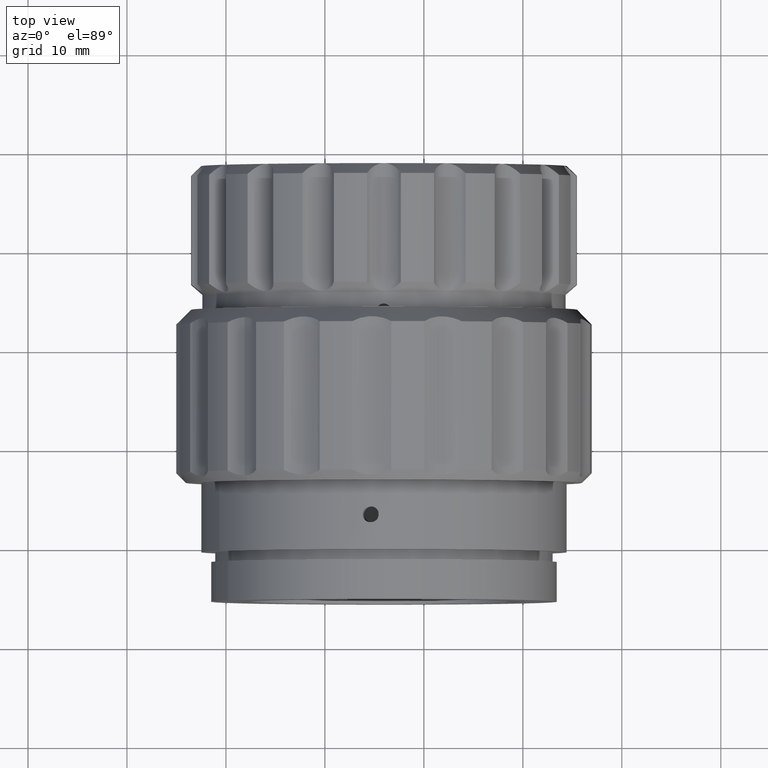
[diagram: clean part render]
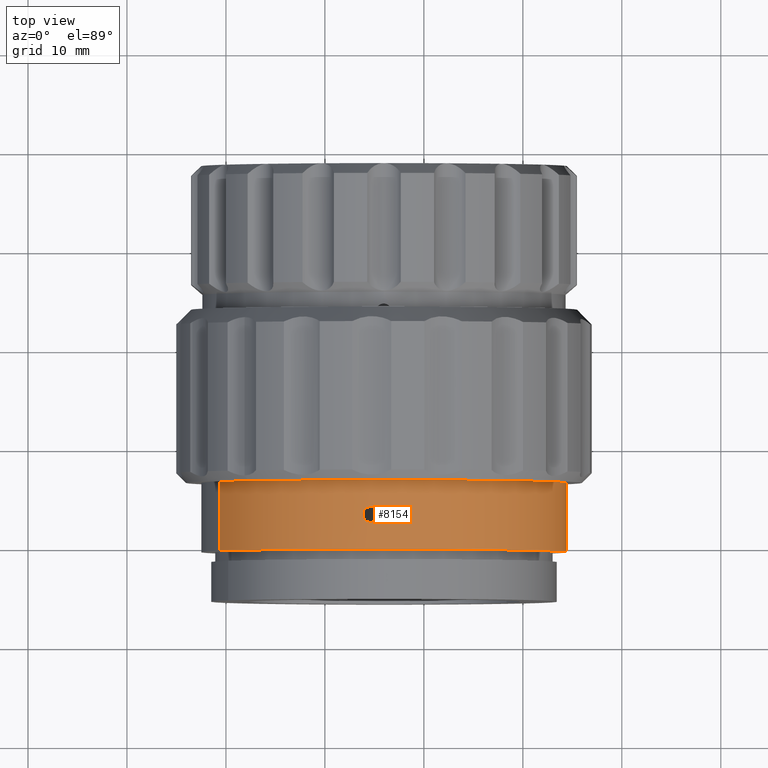
[diagram: same view with one face highlighted and labeled with its STEP entity id]
A machine part, top view. The second image highlights one B-rep face of the part: STEP entity #8154.
In plain terms, the highlighted cylindrical surface (partial cylindrical patch) has radius 18.5 mm, axis along (0, -1, 0).
Its self-contained STEP definition (entity closure, byte-faithful):
#84 = CIRCLE ( 'NONE', #6730, 18.50000000000000000 ) ;
#445 = CARTESIAN_POINT ( 'NONE',  ( 22.95421485139729967, -27.04875568700542132, 37.56544410175752802 ) ) ;
#561 = VECTOR ( 'NONE', #3370, 1000.000000000000000 ) ;
#594 = CARTESIAN_POINT ( 'NONE',  ( 4.215314846893464917, -26.33538536075428738, 63.32033455529960264 ) ) ;
#636 = CARTESIAN_POINT ( 'NONE',  ( 22.66700467115322226, -27.84875568700541848, 36.93286334195106946 ) ) ;
#656 = CARTESIAN_POINT ( 'NONE',  ( 22.62101599078305725, -30.54875568700542132, 36.83792915630831999 ) ) ;
#713 = CARTESIAN_POINT ( 'NONE',  ( 5.971701014312827738, -23.54875568700542132, 44.90330644533106863 ) ) ;
#738 = CARTESIAN_POINT ( 'NONE',  ( 5.271234297513468725, -26.55760953119158074, 63.39019185313431137 ) ) ;
#825 = CARTESIAN_POINT ( 'NONE',  ( 22.95421485139729967, -27.04875568700542132, 37.56544410175752802 ) ) ;
#860 = CARTESIAN_POINT ( 'NONE',  ( 22.95421485139729967, -26.94300266594769866, 37.56544410175752091 ) ) ;
#932 = EDGE_CURVE ( 'NONE', #2867, #2762, #4002, .T. ) ;
#985 = CARTESIAN_POINT ( 'NONE',  ( 4.423760909671483610, -27.82815166489278269, 63.33868808040697473 ) ) ;
#994 = CARTESIAN_POINT ( 'NONE',  ( 22.62101599078306435, -55.81082790531268500, 36.83792915630831288 ) ) ;
#1286 = ORIENTED_EDGE ( 'NONE', *, *, #9397, .F. ) ;
#1349 = CARTESIAN_POINT ( 'NONE',  ( 4.735678254068639959, -26.24871858935710733, 63.36226473401722359 ) ) ;
#1488 = CIRCLE ( 'NONE', #8986, 18.50000000000000000 ) ;
#1752 = CARTESIAN_POINT ( 'NONE',  ( 4.841496471800658341, -27.82774457812802993, 63.36900432168415875 ) ) ;
#1754 = EDGE_CURVE ( 'NONE', #2867, #2402, #1488, .T. ) ;
#1841 = AXIS2_PLACEMENT_3D ( 'NONE', #9544, #5464, #7190 ) ;
#1992 = LINE ( 'NONE', #2753, #561 ) ;
#2038 = VECTOR ( 'NONE', #7093, 1000.000000000000000 ) ;
#2349 = DIRECTION ( 'NONE',  ( 0.000000000000000000, -1.000000000000000000, 0.000000000000000000 ) ) ;
#2402 = VERTEX_POINT ( 'NONE', #9024 ) ;
#2509 = CARTESIAN_POINT ( 'NONE',  ( 5.344429046256649052, -27.46643563968346413, 63.39325715283140994 ) ) ;
#2528 = EDGE_LOOP ( 'NONE', ( #6135, #3940, #4268, #1286, #9700, #4795, #6228 ) ) ;
#2558 = CARTESIAN_POINT ( 'NONE',  ( 3.835219294778413612, -27.26016558468261763, 63.27952602015376726 ) ) ;
#2709 = EDGE_CURVE ( 'NONE', #6787, #4357, #9181, .T. ) ;
#2753 = CARTESIAN_POINT ( 'NONE',  ( 22.62101599078306435, -55.81082790531268500, 36.83792915630831288 ) ) ;
#2762 = VERTEX_POINT ( 'NONE', #8738 ) ;
#2771 = CARTESIAN_POINT ( 'NONE',  ( 22.88993004901827177, -26.55666144112683469, 37.41805529183607604 ) ) ;
#2867 = VERTEX_POINT ( 'NONE', #9623 ) ;
#2959 = CARTESIAN_POINT ( 'NONE',  ( 22.79304017023230955, -27.74768279770128387, 37.20253067308079409 ) ) ;
#3012 = CARTESIAN_POINT ( 'NONE',  ( 3.935805452299495411, -26.64550403280593471, 63.29098561127820233 ) ) ;
#3153 = CARTESIAN_POINT ( 'NONE',  ( 22.95421485139730322, -27.26005484702028525, 37.56544410175752091 ) ) ;
#3327 = CARTESIAN_POINT ( 'NONE',  ( 5.431017640269883984, -27.25756977733642117, 63.39540371657195550 ) ) ;
#3351 = EDGE_CURVE ( 'NONE', #2402, #8681, #7842, .T. ) ;
#3370 = DIRECTION ( 'NONE',  ( 0.000000000000000000, -1.000000000000000000, 0.000000000000000000 ) ) ;
#3399 = EDGE_CURVE ( 'NONE', #9530, #7903, #9125, .T. ) ;
#3555 = EDGE_CURVE ( 'NONE', #7903, #9530, #5982, .T. ) ;
#3687 = CARTESIAN_POINT ( 'NONE',  ( 3.994932987318061013, -26.55675920559166414, 63.29754038862345311 ) ) ;
#3728 = CARTESIAN_POINT ( 'NONE',  ( 5.329942890577187953, -26.64568278814162383, 63.39221559497087810 ) ) ;
#3769 = B_SPLINE_CURVE_WITH_KNOTS ( 'NONE', 3,
 ( #6996, #860, #3956, #7048, #2771, #4359, #7490, #8990 ),
 .UNSPECIFIED., .F., .F.,
 ( 4, 2, 2, 4 ),
 ( 0.000000000000000000, 0.0003127531944308908538, 0.0006255063888617817076, 0.001251012777723576642 ),
 .UNSPECIFIED. ) ;
#3776 = CARTESIAN_POINT ( 'NONE',  ( 22.62101599078306435, -27.84875568700541493, 36.83792915630831288 ) ) ;
#3779 = CARTESIAN_POINT ( 'NONE',  ( 4.423386964770155139, -26.24883003432093176, 63.33958310503579270 ) ) ;
#3940 = ORIENTED_EDGE ( 'NONE', *, *, #1754, .T. ) ;
#3956 = CARTESIAN_POINT ( 'NONE',  ( 22.94597351628154414, -26.83923063289788047, 37.54629004754619359 ) ) ;
#4002 = LINE ( 'NONE', #994, #2038 ) ;
#4090 = CARTESIAN_POINT ( 'NONE',  ( 4.230471501785567412, -27.74790796666770376, 63.32143703405137813 ) ) ;
#4092 = VECTOR ( 'NONE', #9383, 1000.000000000000000 ) ;
#4268 = ORIENTED_EDGE ( 'NONE', *, *, #3351, .T. ) ;
#4357 = VERTEX_POINT ( 'NONE', #445 ) ;
#4359 = CARTESIAN_POINT ( 'NONE',  ( 22.79944262617036443, -26.33527895129820351, 37.21572254327502094 ) ) ;
#4523 = EDGE_LOOP ( 'NONE', ( #6450, #6429 ) ) ;
#4795 = ORIENTED_EDGE ( 'NONE', *, *, #2709, .T. ) ;
#4842 = CARTESIAN_POINT ( 'NONE',  ( 4.737777879915533674, -27.84866790845846651, 63.36241178250032391 ) ) ;
#5122 = CARTESIAN_POINT ( 'NONE',  ( 3.835219294778411836, -27.04875568700542132, 63.27952602015373174 ) ) ;
#5353 = CARTESIAN_POINT ( 'NONE',  ( 5.971701014312827738, -30.54875568700542132, 44.90330644533106863 ) ) ;
#5398 = CARTESIAN_POINT ( 'NONE',  ( 5.431017640274178326, -27.04875568700501987, 63.39540371657205498 ) ) ;
#5464 = DIRECTION ( 'NONE',  ( 0.000000000000000000, -1.000000000000000000, 0.000000000000000000 ) ) ;
#5598 = CARTESIAN_POINT ( 'NONE',  ( 22.92008049625769672, -27.46706645424033510, 37.48547332870801085 ) ) ;
#5616 = CARTESIAN_POINT ( 'NONE',  ( 5.123418612057990984, -27.68784741624311607, 63.38399511723802249 ) ) ;
#5982 = B_SPLINE_CURVE_WITH_KNOTS ( 'NONE', 3,
 ( #7683, #8299, #6072, #3012, #3687, #594, #3779, #1349, #9899, #9217, #9119, #738, #3728, #7582, #8349, #5398 ),
 .UNSPECIFIED., .F., .F.,
 ( 4, 2, 2, 2, 2, 2, 2, 4 ),
 ( 0.000000000000000000, 0.0003126821083319190637, 0.0006253642166638374768, 0.001250728433327669750, 0.001563410541659585561, 0.001876092649991501805, 0.002188774758323417616, 0.002501456866655333428 ),
 .UNSPECIFIED. ) ;
#6072 = CARTESIAN_POINT ( 'NONE',  ( 3.855917910484778499, -26.83927926276575704, 63.28196465823626937 ) ) ;
#6135 = ORIENTED_EDGE ( 'NONE', *, *, #932, .F. ) ;
#6139 = DIRECTION ( 'NONE',  ( 0.000000000000000000, -1.000000000000000000, 0.000000000000000000 ) ) ;
#6184 = DIRECTION ( 'NONE',  ( -0.8999629717010938501, 0.000000000000000000, 0.4359663399471755962 ) ) ;
#6228 = ORIENTED_EDGE ( 'NONE', *, *, #9263, .T. ) ;
#6375 = CARTESIAN_POINT ( 'NONE',  ( 5.431017640274178326, -27.04875568700501987, 63.39540371657205498 ) ) ;
#6429 = ORIENTED_EDGE ( 'NONE', *, *, #3399, .T. ) ;
#6450 = ORIENTED_EDGE ( 'NONE', *, *, #3555, .T. ) ;
#6579 = CARTESIAN_POINT ( 'NONE',  ( 3.835219294778411836, -27.04875568700542132, 63.27952602015373174 ) ) ;
#6730 = AXIS2_PLACEMENT_3D ( 'NONE', #5353, #2349, #6936 ) ;
#6787 = VERTEX_POINT ( 'NONE', #6989 ) ;
#6936 = DIRECTION ( 'NONE',  ( -0.8999629717010936281, 0.000000000000000000, 0.4359663399471755962 ) ) ;
#6989 = CARTESIAN_POINT ( 'NONE',  ( 22.62101599078306435, -27.84875568700541493, 36.83792915630831288 ) ) ;
#6996 = CARTESIAN_POINT ( 'NONE',  ( 22.95421485139729967, -27.04875568700542132, 37.56544410175752802 ) ) ;
#7035 = CARTESIAN_POINT ( 'NONE',  ( -10.67761396215740888, -55.81082790531268500, 52.96868373435381727 ) ) ;
#7048 = CARTESIAN_POINT ( 'NONE',  ( 22.91382810262438241, -26.64542050544974217, 37.47256307929649211 ) ) ;
#7091 = FACE_BOUND ( 'NONE', #4523, .T. ) ;
#7093 = DIRECTION ( 'NONE',  ( 0.000000000000000000, -1.000000000000000000, 0.000000000000000000 ) ) ;
#7127 = CARTESIAN_POINT ( 'NONE',  ( 5.431017640274178326, -27.04875568700501987, 63.39540371657205498 ) ) ;
#7184 = CARTESIAN_POINT ( 'NONE',  ( 4.142218999883214181, -27.68862313426357247, 63.31277302785816374 ) ) ;
#7190 = DIRECTION ( 'NONE',  ( -0.8999629717010938501, 0.000000000000000000, 0.4359663399471755962 ) ) ;
#7490 = CARTESIAN_POINT ( 'NONE',  ( 22.71204314692312209, -26.24875568700498008, 37.02583602534599549 ) ) ;
#7582 = CARTESIAN_POINT ( 'NONE',  ( 5.410275329744074213, -26.83959082834165244, 63.39482926617311165 ) ) ;
#7683 = CARTESIAN_POINT ( 'NONE',  ( 3.835219294778411836, -27.04875568700542132, 63.27952602015373174 ) ) ;
#7842 = LINE ( 'NONE', #7035, #4092 ) ;
#7897 = CYLINDRICAL_SURFACE ( 'NONE', #1841, 18.50000000000000000 ) ;
#7903 = VERTEX_POINT ( 'NONE', #5122 ) ;
#7936 = CARTESIAN_POINT ( 'NONE',  ( 4.527275652294603603, -27.84884291549786539, 63.34713390938711797 ) ) ;
#8020 = VERTEX_POINT ( 'NONE', #656 ) ;
#8154 = ADVANCED_FACE ( 'NONE', ( #9592, #7091 ), #7897, .T. ) ;
#8299 = CARTESIAN_POINT ( 'NONE',  ( 3.835219294778413612, -26.94302670269571465, 63.27952602015373884 ) ) ;
#8349 = CARTESIAN_POINT ( 'NONE',  ( 5.431017640269614866, -26.94432490148855663, 63.39540371657192708 ) ) ;
#8616 = EDGE_CURVE ( 'NONE', #6787, #8020, #1992, .T. ) ;
#8681 = VERTEX_POINT ( 'NONE', #8807 ) ;
#8711 = CARTESIAN_POINT ( 'NONE',  ( 5.034692227647141749, -27.74739009990412697, 63.37981517675482479 ) ) ;
#8738 = CARTESIAN_POINT ( 'NONE',  ( 22.62101599078293646, -26.24875568699507866, 36.83792915630702680 ) ) ;
#8807 = CARTESIAN_POINT ( 'NONE',  ( -10.67761396215740533, -30.54875568700542132, 52.96868373435381727 ) ) ;
#8986 = AXIS2_PLACEMENT_3D ( 'NONE', #713, #6139, #6184 ) ;
#8990 = CARTESIAN_POINT ( 'NONE',  ( 22.62101599078293646, -26.24875568699507866, 36.83792915630702680 ) ) ;
#9024 = CARTESIAN_POINT ( 'NONE',  ( -10.67761396215740888, -23.54875568700542132, 52.96868373435381727 ) ) ;
#9119 = CARTESIAN_POINT ( 'NONE',  ( 5.121890445092240896, -26.40827253313681666, 63.38392893752634194 ) ) ;
#9125 = B_SPLINE_CURVE_WITH_KNOTS ( 'NONE', 3,
 ( #6375, #3327, #2509, #5616, #8711, #1752, #4842, #7936, #985, #4090, #7184, #9541, #2558, #6579 ),
 .UNSPECIFIED., .F., .F.,
 ( 4, 2, 2, 2, 2, 2, 4 ),
 ( 0.002501456866655333428, 0.003126678918673719484, 0.003439289944682912947, 0.003751900970692106409, 0.004064511996701300305, 0.004377123022710493333, 0.005002345074728875053 ),
 .UNSPECIFIED. ) ;
#9181 = B_SPLINE_CURVE_WITH_KNOTS ( 'NONE', 3,
 ( #3776, #636, #9937, #2959, #9215, #5598, #3153, #825 ),
 .UNSPECIFIED., .F., .F.,
 ( 4, 2, 2, 4 ),
 ( 0.003752555960162648040, 0.004065003238804197963, 0.004377450517445747452, 0.005002345074728854236 ),
 .UNSPECIFIED. ) ;
#9215 = CARTESIAN_POINT ( 'NONE',  ( 22.82963241151823652, -27.68838080819150704, 37.28322752122299022 ) ) ;
#9217 = CARTESIAN_POINT ( 'NONE',  ( 5.033801498355228610, -26.34959459663452463, 63.37977067349885374 ) ) ;
#9263 = EDGE_CURVE ( 'NONE', #4357, #2762, #3769, .T. ) ;
#9383 = DIRECTION ( 'NONE',  ( 0.000000000000000000, -1.000000000000000000, 0.000000000000000000 ) ) ;
#9397 = EDGE_CURVE ( 'NONE', #8020, #8681, #84, .T. ) ;
#9530 = VERTEX_POINT ( 'NONE', #7127 ) ;
#9541 = CARTESIAN_POINT ( 'NONE',  ( 3.921632792941928791, -27.46727758740268044, 63.28996131958532345 ) ) ;
#9544 = CARTESIAN_POINT ( 'NONE',  ( 5.971701014312827738, -55.81082790531268500, 44.90330644533106863 ) ) ;
#9592 = FACE_OUTER_BOUND ( 'NONE', #2528, .T. ) ;
#9623 = CARTESIAN_POINT ( 'NONE',  ( 22.62101599078306080, -23.54875568700542132, 36.83792915630831288 ) ) ;
#9700 = ORIENTED_EDGE ( 'NONE', *, *, #8616, .F. ) ;
#9899 = CARTESIAN_POINT ( 'NONE',  ( 4.840343280008440274, -26.26944501996723247, 63.36893439441062981 ) ) ;
#9937 = CARTESIAN_POINT ( 'NONE',  ( 22.71140957432915997, -27.82799827663965786, 37.02666021621409698 ) ) ;